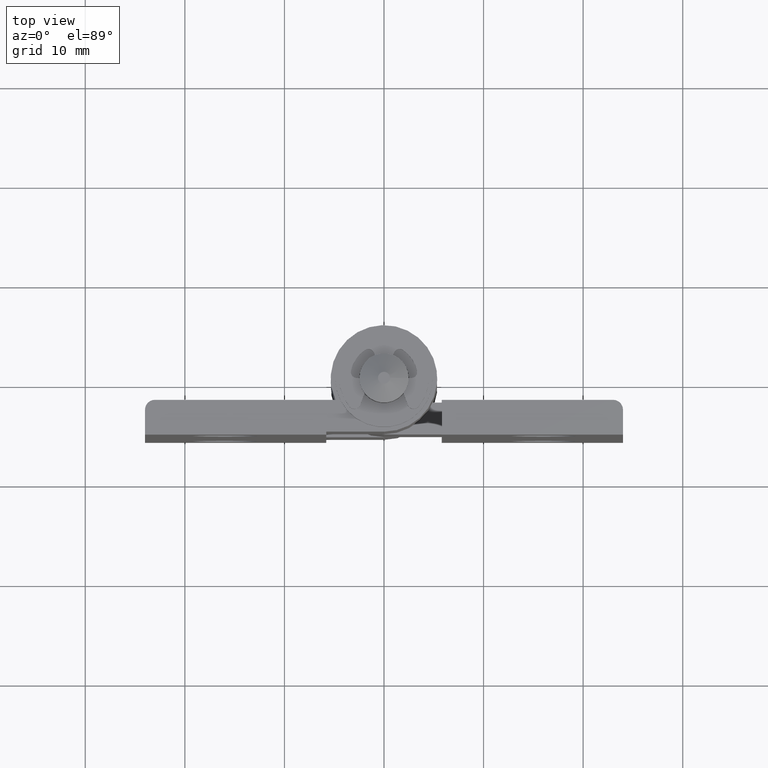
[diagram: clean part render]
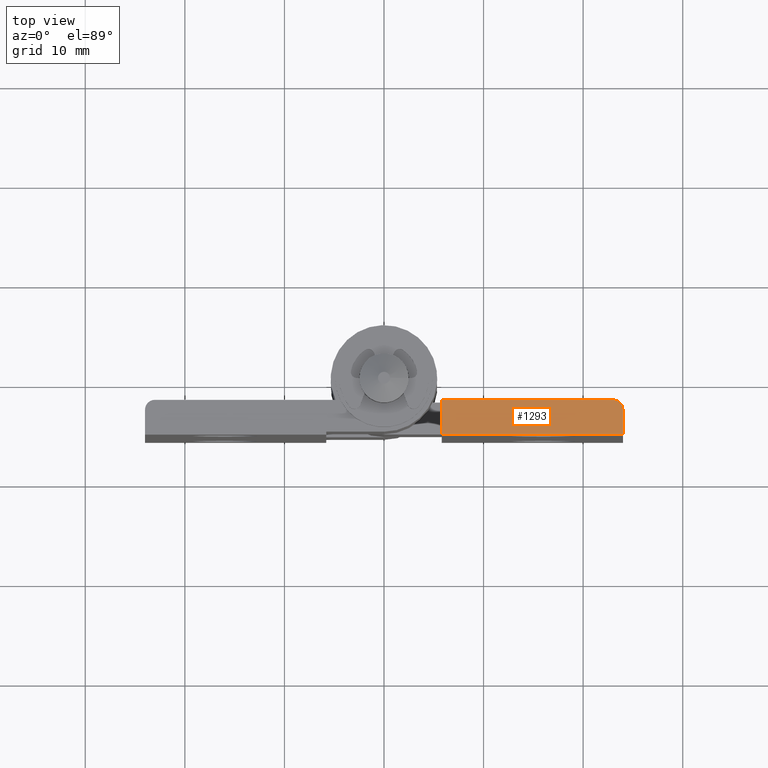
[diagram: same view with one face highlighted and labeled with its STEP entity id]
A machine part, top view. The second image highlights one B-rep face of the part: STEP entity #1293.
In plain terms, the highlighted planar face has unit normal (0, 0, 1).
Its self-contained STEP definition (entity closure, byte-faithful):
#175=FACE_OUTER_BOUND('',#271,.T.);
#271=EDGE_LOOP('',(#996,#997,#998,#999,#1000));
#374=CIRCLE('',#1402,1.);
#461=LINE('',#2081,#553);
#462=LINE('',#2083,#554);
#463=LINE('',#2085,#555);
#464=LINE('',#2088,#556);
#553=VECTOR('',#1649,3.5);
#554=VECTOR('',#1650,18.2);
#555=VECTOR('',#1651,2.5);
#556=VECTOR('',#1654,17.2);
#654=VERTEX_POINT('',#2079);
#655=VERTEX_POINT('',#2080);
#656=VERTEX_POINT('',#2082);
#657=VERTEX_POINT('',#2084);
#658=VERTEX_POINT('',#2086);
#787=EDGE_CURVE('',#654,#655,#461,.T.);
#788=EDGE_CURVE('',#655,#656,#462,.T.);
#789=EDGE_CURVE('',#656,#657,#463,.T.);
#790=EDGE_CURVE('',#658,#657,#374,.T.);
#791=EDGE_CURVE('',#658,#654,#464,.T.);
#996=ORIENTED_EDGE('',*,*,#787,.T.);
#997=ORIENTED_EDGE('',*,*,#788,.T.);
#998=ORIENTED_EDGE('',*,*,#789,.T.);
#999=ORIENTED_EDGE('',*,*,#790,.F.);
#1000=ORIENTED_EDGE('',*,*,#791,.T.);
#1244=PLANE('',#1401);
#1293=ADVANCED_FACE('',(#175),#1244,.T.);
#1401=AXIS2_PLACEMENT_3D('',#2078,#1647,#1648);
#1402=AXIS2_PLACEMENT_3D('',#2087,#1652,#1653);
#1647=DIRECTION('center_axis',(0.,0.,1.));
#1648=DIRECTION('ref_axis',(1.,0.,0.));
#1649=DIRECTION('',(1.34572487833352E-16,-1.,0.));
#1650=DIRECTION('',(1.,1.22002530178589E-16,0.));
#1651=DIRECTION('',(0.,1.,0.));
#1652=DIRECTION('center_axis',(0.,0.,-1.));
#1653=DIRECTION('ref_axis',(0.707106781186546,0.707106781186549,0.));
#1654=DIRECTION('',(-1.,0.,0.));
#2078=CARTESIAN_POINT('Origin',(9.325,-0.15,23.5));
#2079=CARTESIAN_POINT('',(5.8,-2.15,23.5));
#2080=CARTESIAN_POINT('',(5.8,-5.65,23.5));
#2081=CARTESIAN_POINT('',(5.8,-2.9,23.5));
#2082=CARTESIAN_POINT('',(24.,-5.65,23.5));
#2083=CARTESIAN_POINT('',(5.8,-5.65,23.5));
#2084=CARTESIAN_POINT('',(24.,-3.15,23.5));
#2085=CARTESIAN_POINT('',(24.,-5.65,23.5));
#2086=CARTESIAN_POINT('',(23.,-2.15,23.5));
#2087=CARTESIAN_POINT('Origin',(23.,-3.15,23.5));
#2088=CARTESIAN_POINT('',(24.,-2.15,23.5));